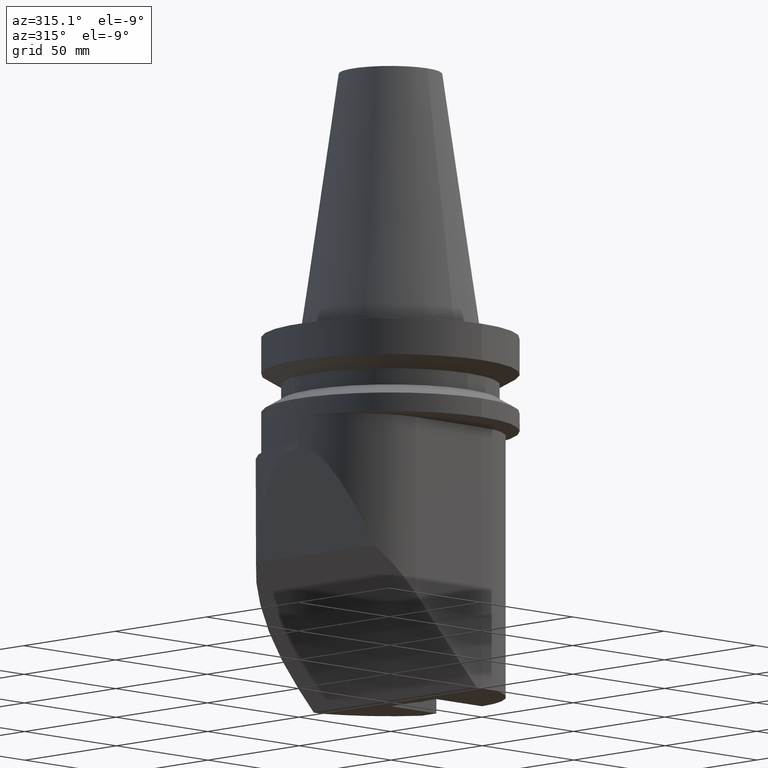
[diagram: clean part render]
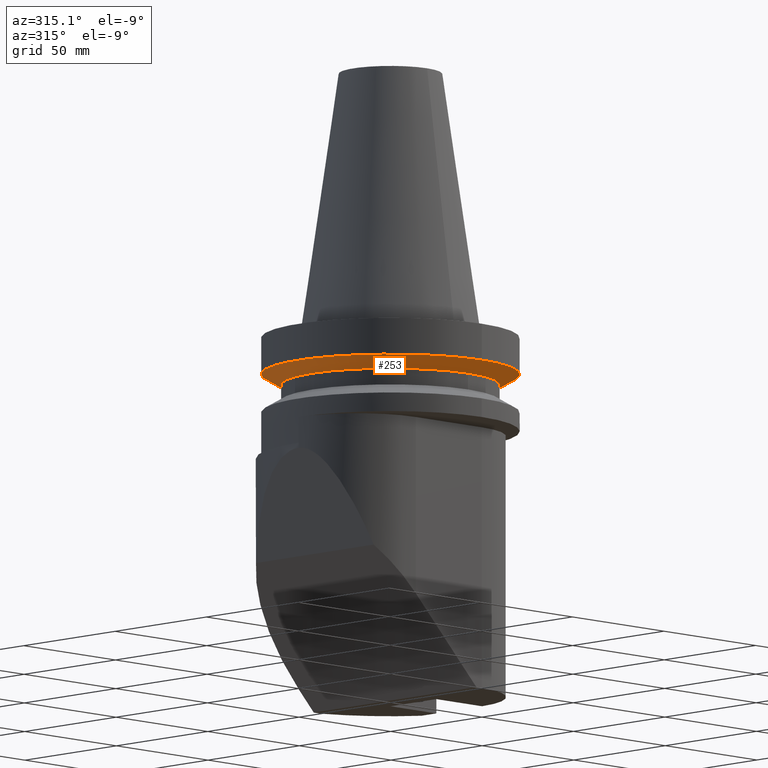
[diagram: same view with one face highlighted and labeled with its STEP entity id]
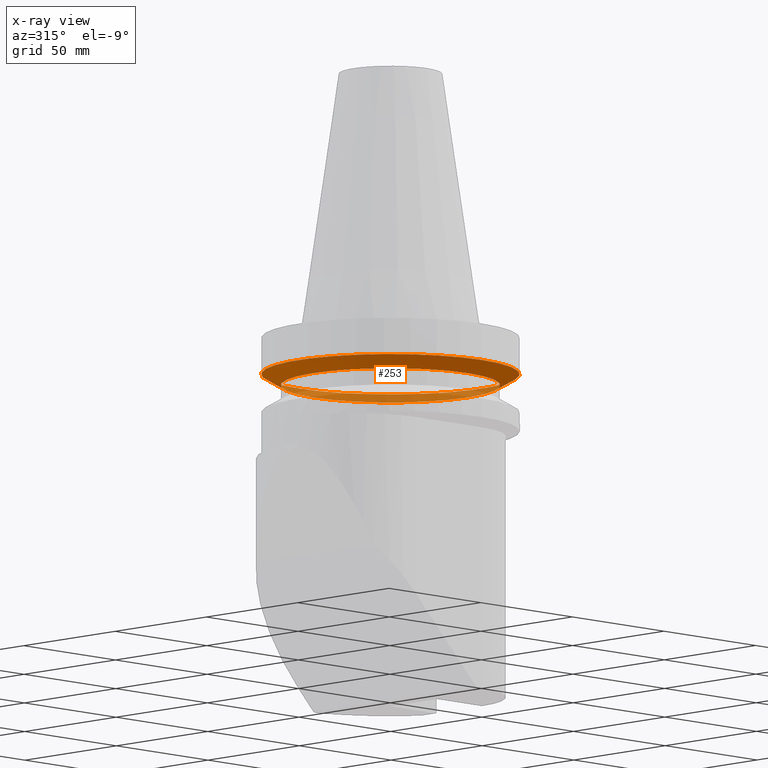
[diagram: x-ray of the same camera — body ghosted, the highlighted face saturated]
A machine part, auxiliary view. The second image highlights one B-rep face of the part: STEP entity #253.
The next image is the same camera in x-ray: the body ghosted, the highlighted face saturated — about 29% of this face is hidden behind the body in this view.
In plain terms, the highlighted conical surface has half-angle 60 deg.
Its self-contained STEP definition (entity closure, byte-faithful):
#133=EDGE_CURVE('Unnamed[1]',#349,#349,#350,.T.);
#174=EDGE_CURVE('Unnamed[1]',#404,#404,#405,.T.);
#253=ADVANCED_FACE('Unnamed[1]',(#507,#508),#509,.T.);
#349=VERTEX_POINT('',#624);
#350=CIRCLE('',#625,50.0000000000015);
#404=VERTEX_POINT('',#703);
#405=CIRCLE('',#704,42.5000000000008);
#507=FACE_BOUND('',#849,.T.);
#508=FACE_BOUND('',#850,.T.);
#509=CONICAL_SURFACE('',#851,46.2500000000011,1.04719755119665);
#624=CARTESIAN_POINT('',(9.613477373308E-016,-50.0000000000015,-15.7000000000021));
#625=AXIS2_PLACEMENT_3D('',#942,#943,#944);
#703=CARTESIAN_POINT('',(1.22649154701202E-015,-42.5000000000008,-20.0301270189242));
#704=AXIS2_PLACEMENT_3D('',#1025,#1026,#1027);
#849=EDGE_LOOP('',(#1155));
#850=EDGE_LOOP('',(#1156));
#851=AXIS2_PLACEMENT_3D('',#1157,#1158,#1159);
#942=CARTESIAN_POINT('',(9.61347737330797E-016,2.91019011721642E-014,-15.700000000002));
#943=DIRECTION('',(-6.12323399573676E-017,-1.07157455523682E-015,1.0));
#944=DIRECTION('',(7.04421701866976E-032,-1.0,-1.07157455523682E-015));
#1025=CARTESIAN_POINT('',(1.22649154701202E-015,3.37419551065847E-014,-20.0301270189241));
#1026=DIRECTION('',(-6.12323399573677E-017,-1.07157455523686E-015,1.0));
#1027=DIRECTION('',(7.04421701866967E-032,-1.0,-1.07157455523686E-015));
#1155=ORIENTED_EDGE('',*,*,#133,.F.);
#1156=ORIENTED_EDGE('',*,*,#174,.T.);
#1157=CARTESIAN_POINT('',(1.09391964217141E-015,3.14219281393744E-014,-17.8650635094631));
#1158=DIRECTION('',(-6.12323399573677E-017,-1.07157455523684E-015,1.0));
#1159=DIRECTION('',(7.04421701866972E-032,-1.0,-1.07157455523684E-015));